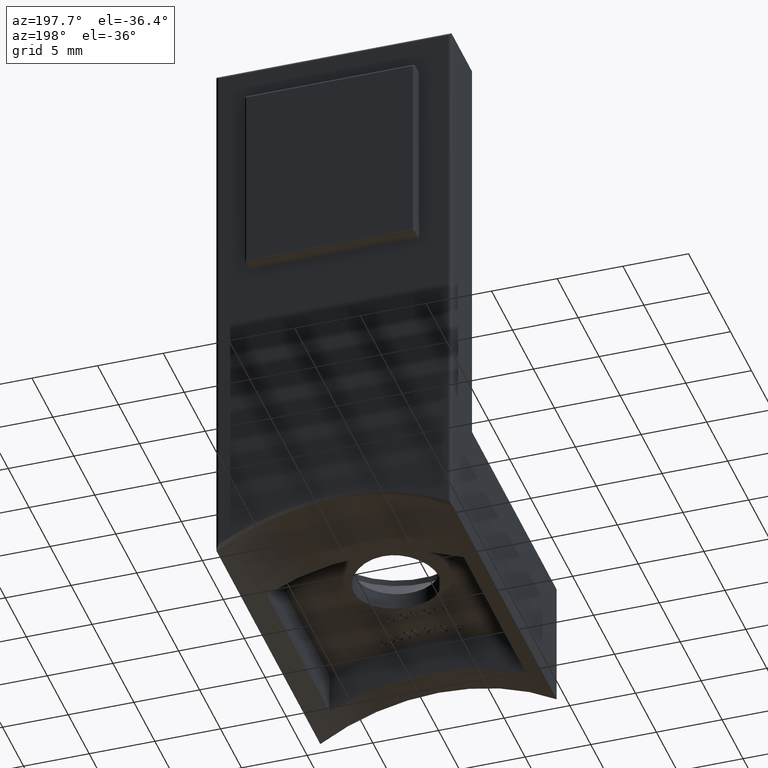
[diagram: clean part render]
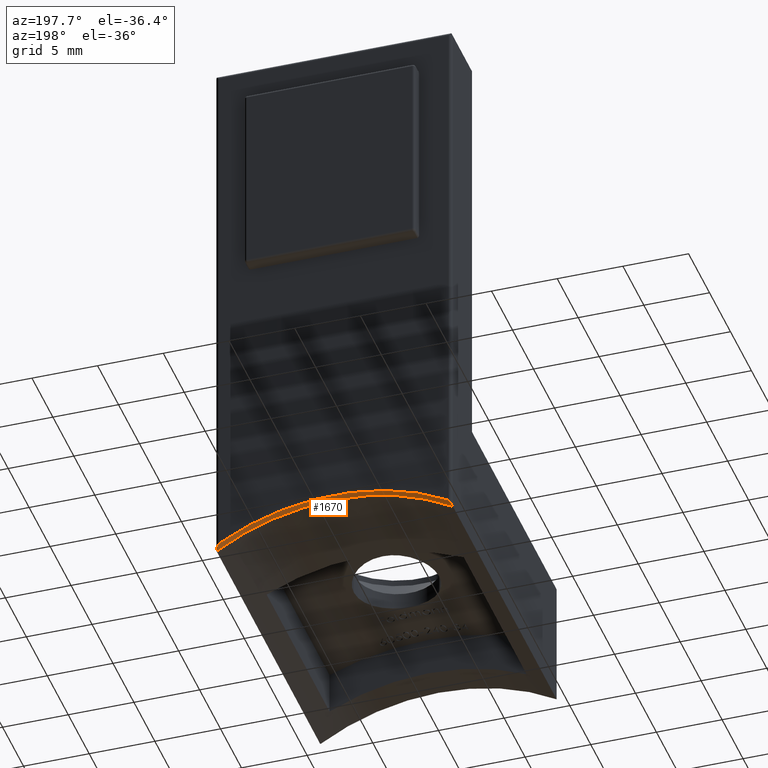
[diagram: same view with one face highlighted and labeled with its STEP entity id]
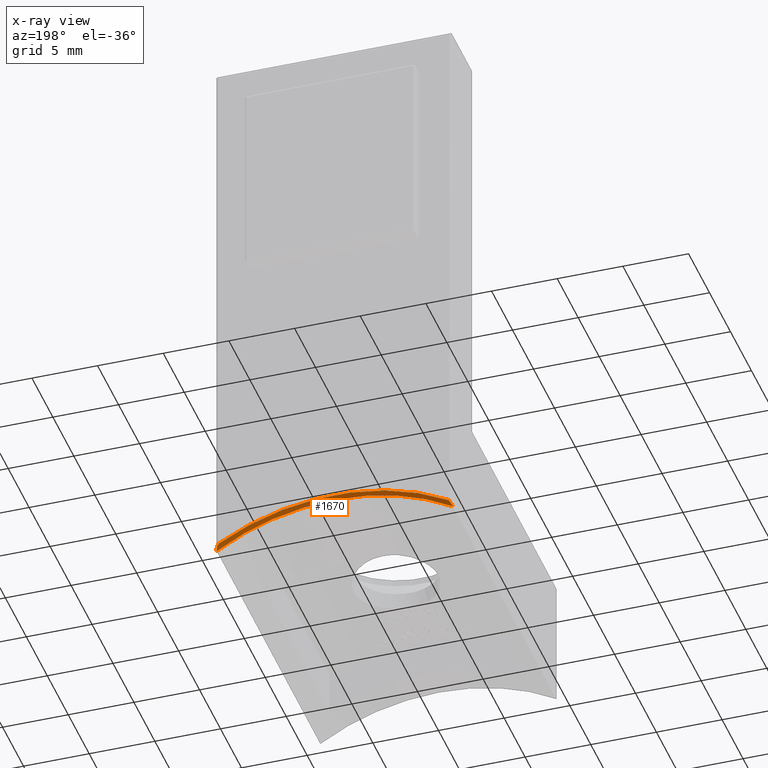
[diagram: x-ray of the same camera — body ghosted, the highlighted face saturated]
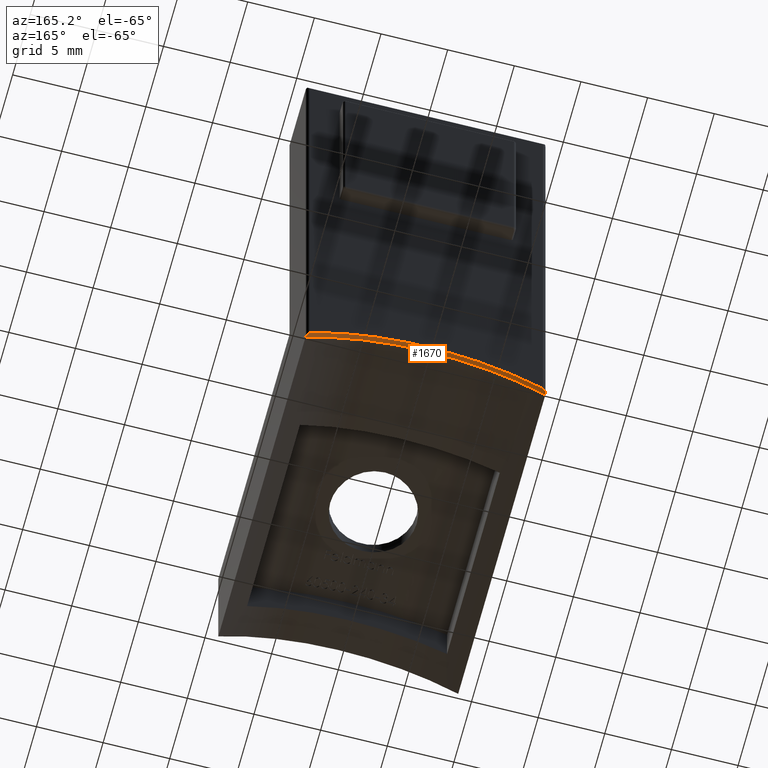
[diagram: same view with one face highlighted and labeled with its STEP entity id]
A machine part, auxiliary view. The second image highlights one B-rep face of the part: STEP entity #1670.
The next image is the same camera in x-ray: the body ghosted, the highlighted face saturated — about 0% of this face is hidden behind the body in this view.
A second angle (auxiliary view) of the same face is appended — the face is thin or edge-on in the first view.
In plain terms, the highlighted toroidal blend (fillet) surface has major radius 17.1 mm and minor (blend) radius 0.25 mm.
Its self-contained STEP definition (entity closure, byte-faithful):
#491 = CARTESIAN_POINT ( 'NONE',  ( 9.000000000000000000, -0.2500000000000002200, -2.604913127678021300 ) ) ;
#493 = CARTESIAN_POINT ( 'NONE',  ( 0.0000000000000000000, -0.2500000000000002200, -16.85000000000000100 ) ) ;
#500 = VERTEX_POINT ( 'NONE', #12444 ) ;
#663 = DIRECTION ( 'NONE',  ( -0.0000000000000000000, 1.000000000000000000, -0.0000000000000000000 ) ) ;
#973 = CARTESIAN_POINT ( 'NONE',  ( -8.850916226985196600, -0.01393222604999664100, -2.336652879341552900 ) ) ;
#1664 = VERTEX_POINT ( 'NONE', #12391 ) ;
#1670 = ADVANCED_FACE ( 'NONE', ( #3890 ), #12176, .T. ) ;
#1718 = CARTESIAN_POINT ( 'NONE',  ( 8.944328991508628600, -0.08830865863948635100, -2.504201808824944000 ) ) ;
#1739 = B_SPLINE_CURVE_WITH_KNOTS ( 'NONE', 3,
 ( #3255, #7729, #973, #8873, #11116, #5932, #4925, #10560 ),
 .UNSPECIFIED., .F., .F.,
 ( 4, 2, 2, 4 ),
 ( -3.411629828712934400E-006, 0.0003022244099339507400, 0.0004550424298152813100, 0.0006078604496966118700 ),
 .UNSPECIFIED. ) ;
#2008 = AXIS2_PLACEMENT_3D ( 'NONE', #9718, #663, #8483 ) ;
#2319 = VERTEX_POINT ( 'NONE', #9110 ) ;
#2615 = DIRECTION ( 'NONE',  ( -0.0000000000000000000, 1.000000000000000000, -0.0000000000000000000 ) ) ;
#2714 = CARTESIAN_POINT ( 'NONE',  ( 8.921540385249827000, -0.06580759242229802800, -2.463178244726099000 ) ) ;
#3096 = AXIS2_PLACEMENT_3D ( 'NONE', #6752, #14593, #7870 ) ;
#3120 = ORIENTED_EDGE ( 'NONE', *, *, #10100, .F. ) ;
#3237 = CARTESIAN_POINT ( 'NONE',  ( 0.0000000000000000000, -0.2500000000000002200, 0.0000000000000000000 ) ) ;
#3241 = VERTEX_POINT ( 'NONE', #11389 ) ;
#3255 = CARTESIAN_POINT ( 'NONE',  ( -8.749999999999998200, 0.0000000000000000000, -2.158250614715755000 ) ) ;
#3890 = FACE_OUTER_BOUND ( 'NONE', #7795, .T. ) ;
#4477 = ORIENTED_EDGE ( 'NONE', *, *, #10822, .F. ) ;
#4925 = CARTESIAN_POINT ( 'NONE',  ( -9.000000000000000000, -0.1976798524568395000, -2.604913127678021700 ) ) ;
#5059 = EDGE_CURVE ( 'NONE', #500, #2319, #14320, .T. ) ;
#5295 = EDGE_CURVE ( 'NONE', #1664, #14091, #6406, .T. ) ;
#5932 = CARTESIAN_POINT ( 'NONE',  ( -8.983231000998001600, -0.1524742897682522500, -2.574472266691441500 ) ) ;
#6005 = EDGE_CURVE ( 'NONE', #3241, #500, #13664, .T. ) ;
#6406 = CIRCLE ( 'NONE', #2008, 16.85000000000000100 ) ;
#6620 = CIRCLE ( 'NONE', #12962, 16.85000000000000100 ) ;
#6752 = CARTESIAN_POINT ( 'NONE',  ( 0.0000000000000000000, -0.2500000000000002200, -16.85000000000000100 ) ) ;
#6877 = ORIENTED_EDGE ( 'NONE', *, *, #6005, .F. ) ;
#7001 = AXIS2_PLACEMENT_3D ( 'NONE', #13122, #14243, #13068 ) ;
#7288 = CARTESIAN_POINT ( 'NONE',  ( 8.850928298023330100, -0.01393800436857489700, -2.336674415078420900 ) ) ;
#7729 = CARTESIAN_POINT ( 'NONE',  ( -8.800336264582970400, -1.200669202732970200E-016, -2.246825750544829200 ) ) ;
#7795 = EDGE_LOOP ( 'NONE', ( #3120, #8255, #6877, #4477, #10683 ) ) ;
#7870 = DIRECTION ( 'NONE',  ( 0.0000000000000000000, 0.0000000000000000000, -1.000000000000000000 ) ) ;
#8255 = ORIENTED_EDGE ( 'NONE', *, *, #5059, .F. ) ;
#8483 = DIRECTION ( 'NONE',  ( 2.664535259100375300E-015, 0.0000000000000000000, -1.000000000000000000 ) ) ;
#8873 = CARTESIAN_POINT ( 'NONE',  ( -8.921533542411127700, -0.06580102193651334000, -2.463165940613916600 ) ) ;
#9110 = CARTESIAN_POINT ( 'NONE',  ( -8.749999999999998200, 0.0000000000000000000, -2.158250614715755000 ) ) ;
#9452 = CARTESIAN_POINT ( 'NONE',  ( 8.983232860971240200, -0.1524793387281735700, -2.574475642180285000 ) ) ;
#9496 = CARTESIAN_POINT ( 'NONE',  ( 8.749999999999998200, 0.0000000000000000000, -2.158250614715755000 ) ) ;
#9718 = CARTESIAN_POINT ( 'NONE',  ( 0.0000000000000000000, -0.2500000000000002200, -16.85000000000000100 ) ) ;
#10100 = EDGE_CURVE ( 'NONE', #2319, #1664, #1739, .T. ) ;
#10536 = CARTESIAN_POINT ( 'NONE',  ( 9.000000000000000000, -0.1976830329895308500, -2.604913127678020900 ) ) ;
#10560 = CARTESIAN_POINT ( 'NONE',  ( -9.000000000000000000, -0.2500000000000002200, -2.604913127678021300 ) ) ;
#10683 = ORIENTED_EDGE ( 'NONE', *, *, #5295, .F. ) ;
#10822 = EDGE_CURVE ( 'NONE', #14091, #3241, #6620, .T. ) ;
#11116 = CARTESIAN_POINT ( 'NONE',  ( -8.944323756079983300, -0.08830200432378689000, -2.504192367568700600 ) ) ;
#11389 = CARTESIAN_POINT ( 'NONE',  ( 9.000000000000000000, -0.2500000000000002200, -2.604913127678021300 ) ) ;
#11605 = DIRECTION ( 'NONE',  ( 0.0000000000000000000, 0.0000000000000000000, -1.000000000000000000 ) ) ;
#12176 = TOROIDAL_SURFACE ( 'NONE', #3096, 17.10000000000000100, 0.2500000000000000000 ) ;
#12391 = CARTESIAN_POINT ( 'NONE',  ( -9.000000000000000000, -0.2500000000000002200, -2.604913127678021300 ) ) ;
#12444 = CARTESIAN_POINT ( 'NONE',  ( 8.749999999999998200, 0.0000000000000000000, -2.158250614715755000 ) ) ;
#12780 = CARTESIAN_POINT ( 'NONE',  ( 8.800887465729680100, 2.333575769685596000E-016, -2.247795681802999400 ) ) ;
#12962 = AXIS2_PLACEMENT_3D ( 'NONE', #493, #2615, #11605 ) ;
#13068 = DIRECTION ( 'NONE',  ( 0.0000000000000000000, 0.0000000000000000000, -1.000000000000000000 ) ) ;
#13122 = CARTESIAN_POINT ( 'NONE',  ( 0.0000000000000000000, 0.0000000000000000000, -16.85000000000000100 ) ) ;
#13664 = B_SPLINE_CURVE_WITH_KNOTS ( 'NONE', 3,
 ( #491, #10536, #9452, #1718, #2714, #7288, #12780, #9496 ),
 .UNSPECIFIED., .F., .F.,
 ( 4, 2, 2, 4 ),
 ( 1.084202172485504400E-019, 0.0001544914350322939400, 0.0003089828700645877800, 0.0006179657401291729500 ),
 .UNSPECIFIED. ) ;
#14091 = VERTEX_POINT ( 'NONE', #3237 ) ;
#14243 = DIRECTION ( 'NONE',  ( 0.0000000000000000000, -1.000000000000000000, 0.0000000000000000000 ) ) ;
#14320 = CIRCLE ( 'NONE', #7001, 17.10000000000000100 ) ;
#14593 = DIRECTION ( 'NONE',  ( 0.0000000000000000000, -1.000000000000000000, 0.0000000000000000000 ) ) ;